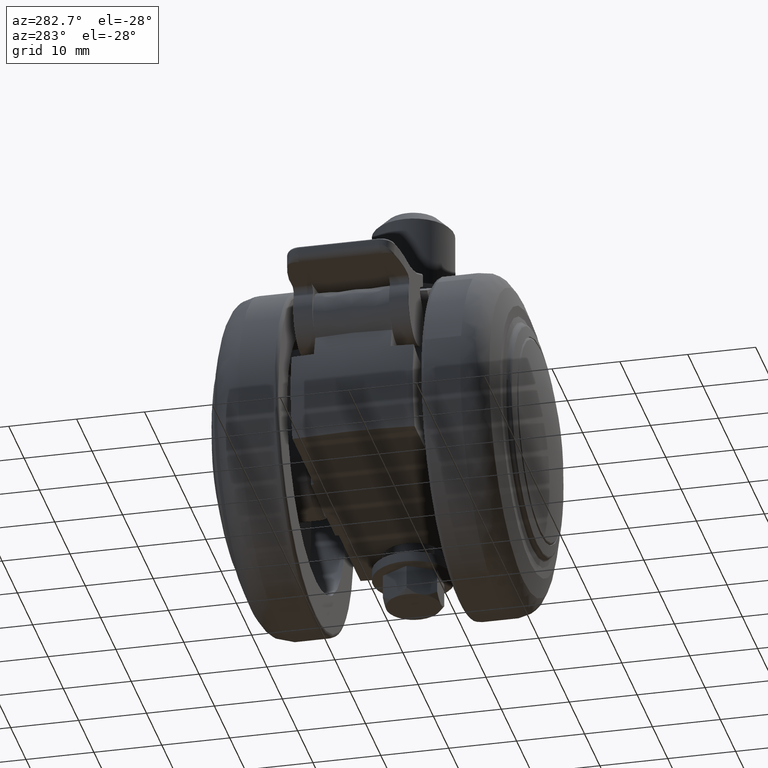
[diagram: clean part render]
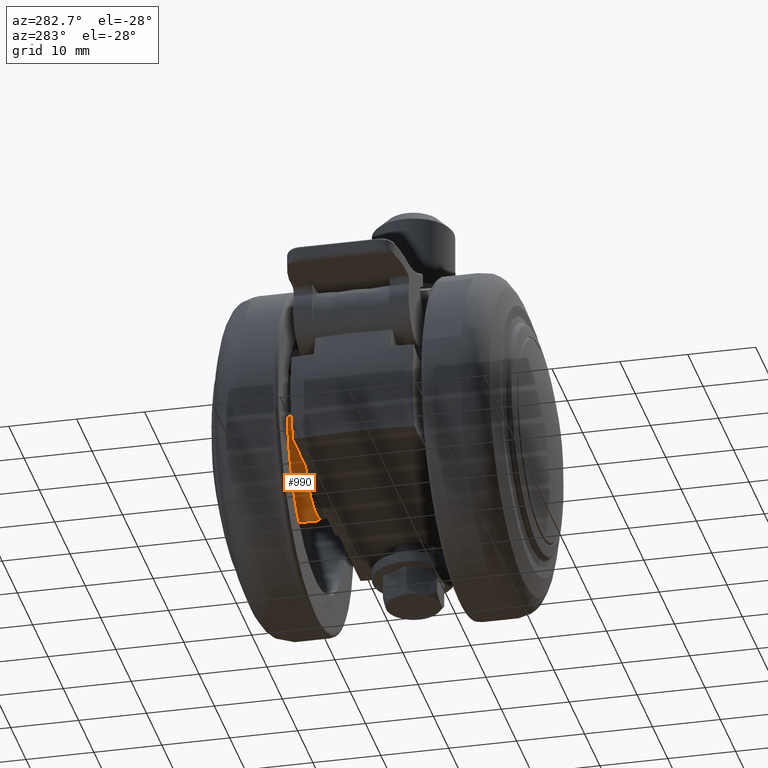
[diagram: same view with one face highlighted and labeled with its STEP entity id]
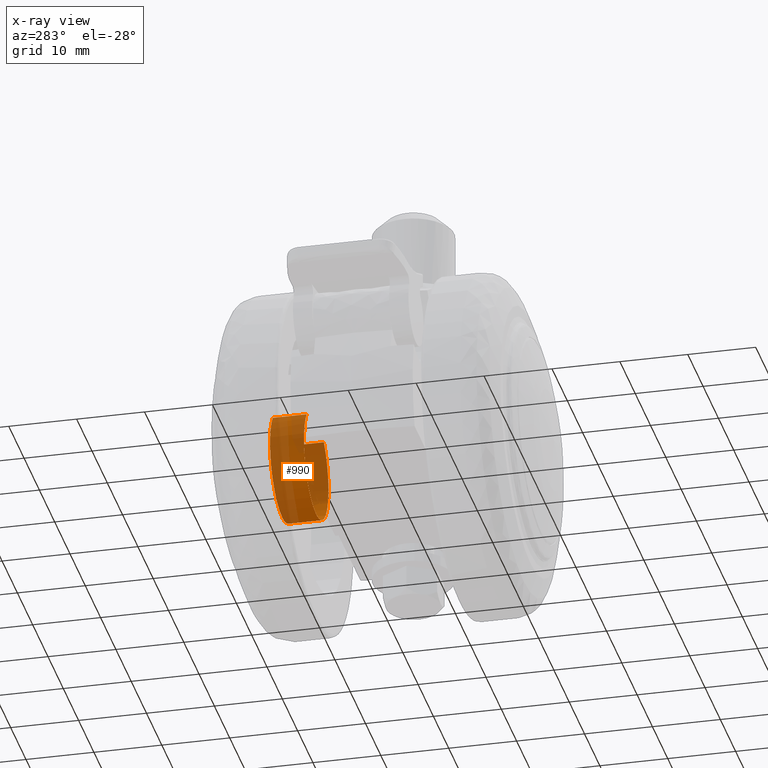
[diagram: x-ray of the same camera — body ghosted, the highlighted face saturated]
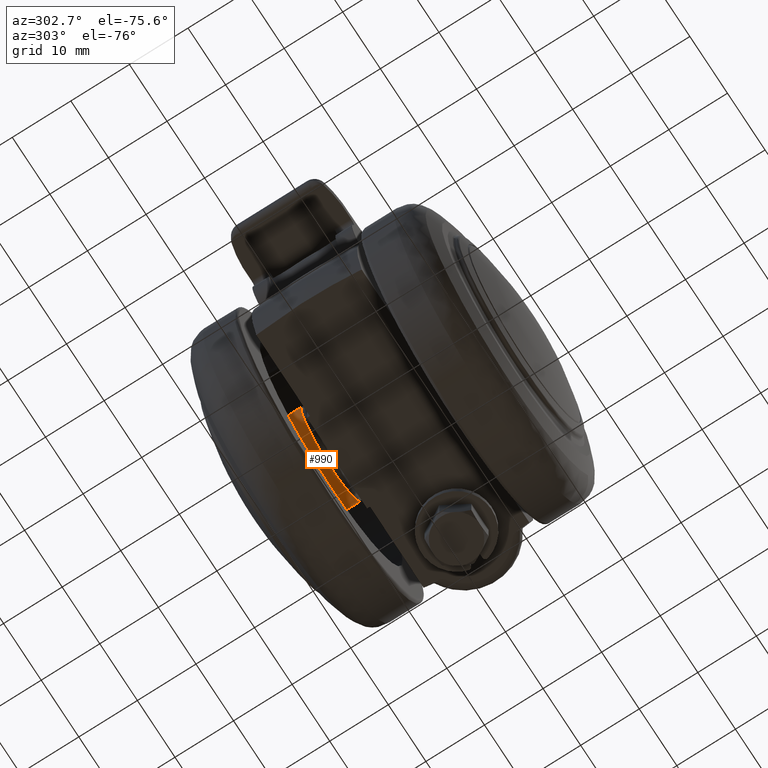
[diagram: same view with one face highlighted and labeled with its STEP entity id]
A machine part, auxiliary view. The second image highlights one B-rep face of the part: STEP entity #990.
The next image is the same camera in x-ray: the body ghosted, the highlighted face saturated — about 70% of this face is hidden behind the body in this view.
A second angle (auxiliary view) of the same face is appended — the face is thin or edge-on in the first view.
In plain terms, the highlighted face is a freeform B-spline surface patch.
Its self-contained STEP definition (entity closure, byte-faithful):
#856=CARTESIAN_POINT('',(-4.980117093100955,-10.374999999365169,6.260865254819311));
#857=CARTESIAN_POINT('',(-11.240982347920266,-10.374999999365174,1.280748161718356));
#858=CARTESIAN_POINT('',(-6.260865254819310,-10.374999999365169,-4.980117093100954));
#859=CARTESIAN_POINT('',(-1.280748161718354,-10.374999999365174,-11.240982347920262));
#860=CARTESIAN_POINT('',(4.980117093100955,-10.374999999365169,-6.260865254819308));
#861=CARTESIAN_POINT('',(11.240982347920266,-10.374999999365174,-1.280748161718353));
#862=CARTESIAN_POINT('',(6.260865254819310,-10.374999999365169,4.980117093100957));
#863=CARTESIAN_POINT('',(-4.980117093100955,-15.628125000015871,6.260865254819311));
#864=CARTESIAN_POINT('',(-11.240982347920266,-15.628125000015876,1.280748161718356));
#865=CARTESIAN_POINT('',(-6.260865254819310,-15.628125000015871,-4.980117093100954));
#866=CARTESIAN_POINT('',(-1.280748161718354,-15.628125000015876,-11.240982347920262));
#867=CARTESIAN_POINT('',(4.980117093100955,-15.628125000015871,-6.260865254819308));
#868=CARTESIAN_POINT('',(11.240982347920266,-15.628125000015876,-1.280748161718353));
#869=CARTESIAN_POINT('',(6.260865254819310,-15.628125000015871,4.980117093100957));
#877=(BOUNDED_SURFACE()B_SPLINE_SURFACE(2,1,((#856,#863),(#857,#864),(#858,#865),(#859,#866),(#860,#867),(#861,#868),(#862,#869)),.UNSPECIFIED.,.F.,.F.,.U.)B_SPLINE_SURFACE_WITH_KNOTS((3,2,2,3),(2,2),(0.0,13.254833995939039,26.509667991878079,39.764501987817113),(0.0,5.253125000650701),.UNSPECIFIED.)GEOMETRIC_REPRESENTATION_ITEM()RATIONAL_B_SPLINE_SURFACE(((1.0,1.0),(0.707106781186548,0.707106781186548),(1.0,1.0),(0.707106781186548,0.707106781186548),(1.0,1.0),(0.707106781186548,0.707106781186548),(1.0,1.0)))REPRESENTATION_ITEM('')SURFACE());
#878=CARTESIAN_POINT('',(-4.980114340135735,-10.499999999865500,6.260867444624746));
#879=VERTEX_POINT('',#878);
#880=CARTESIAN_POINT('',(-7.999999999999998,-10.499999999380661,1.730527E-014));
#881=VERTEX_POINT('',#880);
#882=CARTESIAN_POINT('',(-4.980114340135735,-10.499999999865501,6.260867444624747));
#883=CARTESIAN_POINT('',(-7.999999999999980,-10.499999999679394,3.858744094582242));
#884=CARTESIAN_POINT('',(-7.999999999999998,-10.499999999380661,1.730527E-014));
#892=(BOUNDED_CURVE()B_SPLINE_CURVE(2,(#882,#883,#884),.UNSPECIFIED.,.F.,.U.)B_SPLINE_CURVE_WITH_KNOTS((3,3),(0.607863810830417,0.749999999999999),.UNSPECIFIED.)CURVE()GEOMETRIC_REPRESENTATION_ITEM()RATIONAL_B_SPLINE_CURVE((0.856305640024810,0.833477096176972,0.999999999999998))REPRESENTATION_ITEM(''));
#893=EDGE_CURVE('',#879,#881,#892,.T.);
#894=ORIENTED_EDGE('',*,*,#893,.T.);
#895=CARTESIAN_POINT('',(0.0,-10.500000000000000,-7.999999999999998));
#896=VERTEX_POINT('',#895);
#897=CARTESIAN_POINT('',(-7.999999999999996,-10.499999999380659,1.730527E-014));
#898=CARTESIAN_POINT('',(-8.000000000000030,-10.500000000000002,-8.0));
#899=CARTESIAN_POINT('',(0.0,-10.500000000000000,-7.999999999999998));
#907=(BOUNDED_CURVE()B_SPLINE_CURVE(2,(#897,#898,#899),.UNSPECIFIED.,.F.,.U.)B_SPLINE_CURVE_WITH_KNOTS((3,3),(0.749999999999999,1.0),.UNSPECIFIED.)CURVE()GEOMETRIC_REPRESENTATION_ITEM()RATIONAL_B_SPLINE_CURVE((1.000000000000002,0.707106781186547,1.0))REPRESENTATION_ITEM(''));
#908=EDGE_CURVE('',#881,#896,#907,.T.);
#909=ORIENTED_EDGE('',*,*,#908,.T.);
#910=CARTESIAN_POINT('',(7.946493110278659,-10.499999999392470,-0.923713834633754));
#911=VERTEX_POINT('',#910);
#912=CARTESIAN_POINT('',(0.0,-10.500000000000000,-7.999999999999998));
#913=CARTESIAN_POINT('',(7.123933606584562,-10.500000000000002,-7.999999999999999));
#914=CARTESIAN_POINT('',(7.946493110278659,-10.499999999392465,-0.923713834633754));
#922=(BOUNDED_CURVE()B_SPLINE_CURVE(2,(#912,#913,#914),.UNSPECIFIED.,.F.,.U.)B_SPLINE_CURVE_WITH_KNOTS((3,3),(0.0,0.229999999999269),.UNSPECIFIED.)CURVE()GEOMETRIC_REPRESENTATION_ITEM()RATIONAL_B_SPLINE_CURVE((1.0,0.730538238692480,0.956886118189221))REPRESENTATION_ITEM(''));
#923=EDGE_CURVE('',#896,#911,#922,.T.);
#924=ORIENTED_EDGE('',*,*,#923,.T.);
#925=CARTESIAN_POINT('',(6.260867446757803,-10.500000000000160,4.980114337454115));
#926=VERTEX_POINT('',#925);
#927=CARTESIAN_POINT('',(7.946493110278659,-10.499999999392472,-0.923713834633754));
#928=CARTESIAN_POINT('',(8.0,-10.500000000000000,-0.463406632800353));
#929=CARTESIAN_POINT('',(8.0,-10.500000000000000,1.789254E-015));
#930=CARTESIAN_POINT('',(8.0,-10.500000000000000,2.793723092117577));
#931=CARTESIAN_POINT('',(6.260867446757803,-10.500000000000156,4.980114337454115));
#939=(BOUNDED_CURVE()B_SPLINE_CURVE(2,(#927,#928,#929,#930,#931),.UNSPECIFIED.,.F.,.U.)B_SPLINE_CURVE_WITH_KNOTS((3,2,3),(0.229999999999269,0.250000000000000,0.357863810765581),.UNSPECIFIED.)CURVE()GEOMETRIC_REPRESENTATION_ITEM()RATIONAL_B_SPLINE_CURVE((0.956886118189221,0.976568542494068,1.0,0.873629685085536,0.856305640045636))REPRESENTATION_ITEM(''));
#940=EDGE_CURVE('',#911,#926,#939,.T.);
#941=ORIENTED_EDGE('',*,*,#940,.T.);
#942=CARTESIAN_POINT('',(6.260867593190534,-15.500000000000000,4.980114153362598));
#943=VERTEX_POINT('',#942);
#944=CARTESIAN_POINT('',(6.260867446757803,-10.500000000000160,4.980114337454115));
#945=CARTESIAN_POINT('',(6.260867593190534,-15.500000000000000,4.980114153362598));
#946=QUASI_UNIFORM_CURVE('',1,(#944,#945),.UNSPECIFIED.,.F.,.U.);
#947=EDGE_CURVE('',#926,#943,#946,.T.);
#948=ORIENTED_EDGE('',*,*,#947,.T.);
#949=CARTESIAN_POINT('',(0.0,-15.500000000000000,-7.999999999999998));
#950=VERTEX_POINT('',#949);
#951=CARTESIAN_POINT('',(0.0,-15.500000000000000,-7.999999999999998));
#952=CARTESIAN_POINT('',(8.0,-15.500000000000004,-7.999999999999999));
#953=CARTESIAN_POINT('',(8.0,-15.500000000000000,1.789254E-015));
#954=CARTESIAN_POINT('',(8.0,-15.500000000000007,2.793722960160363));
#955=CARTESIAN_POINT('',(6.260867593190534,-15.500000000000005,4.980114153362598));
#963=(BOUNDED_CURVE()B_SPLINE_CURVE(2,(#951,#952,#953,#954,#955),.UNSPECIFIED.,.F.,.U.)B_SPLINE_CURVE_WITH_KNOTS((3,2,3),(0.0,0.250000000000000,0.357863806314629),.UNSPECIFIED.)CURVE()GEOMETRIC_REPRESENTATION_ITEM()RATIONAL_B_SPLINE_CURVE((1.0,0.707106781186548,1.0,0.873629690300151,0.856305641475375))REPRESENTATION_ITEM(''));
#964=EDGE_CURVE('',#950,#943,#963,.T.);
#965=ORIENTED_EDGE('',*,*,#964,.F.);
#966=CARTESIAN_POINT('',(-4.980114373297756,-15.500000000000000,6.260867418246535));
#967=VERTEX_POINT('',#966);
#968=CARTESIAN_POINT('',(-4.980114373297756,-15.500000000000002,6.260867418246537));
#969=CARTESIAN_POINT('',(-8.0,-15.500000000000007,3.858744068466173));
#970=CARTESIAN_POINT('',(-8.0,-15.500000000000000,1.789254E-015));
#971=CARTESIAN_POINT('',(-8.0,-15.500000000000004,-7.999999999999999));
#972=CARTESIAN_POINT('',(0.0,-15.500000000000000,-7.999999999999998));
#980=(BOUNDED_CURVE()B_SPLINE_CURVE(2,(#968,#969,#970,#971,#972),.UNSPECIFIED.,.F.,.U.)B_SPLINE_CURVE_WITH_KNOTS((3,2,3),(0.607863811632206,0.750000000000000,1.0),.UNSPECIFIED.)CURVE()GEOMETRIC_REPRESENTATION_ITEM()RATIONAL_B_SPLINE_CURVE((0.856305639767259,0.833477097116326,1.0,0.707106781186548,1.0))REPRESENTATION_ITEM(''));
#981=EDGE_CURVE('',#967,#950,#980,.T.);
#982=ORIENTED_EDGE('',*,*,#981,.F.);
#983=CARTESIAN_POINT('',(-4.980114340135735,-10.499999999865500,6.260867444624746));
#984=CARTESIAN_POINT('',(-4.980114373297756,-15.500000000000000,6.260867418246535));
#985=QUASI_UNIFORM_CURVE('',1,(#983,#984),.UNSPECIFIED.,.F.,.U.);
#986=EDGE_CURVE('',#879,#967,#985,.T.);
#987=ORIENTED_EDGE('',*,*,#986,.F.);
#988=EDGE_LOOP('',(#894,#909,#924,#941,#948,#965,#982,#987));
#989=FACE_OUTER_BOUND('',#988,.T.);
#990=ADVANCED_FACE('',(#989),#877,.T.);